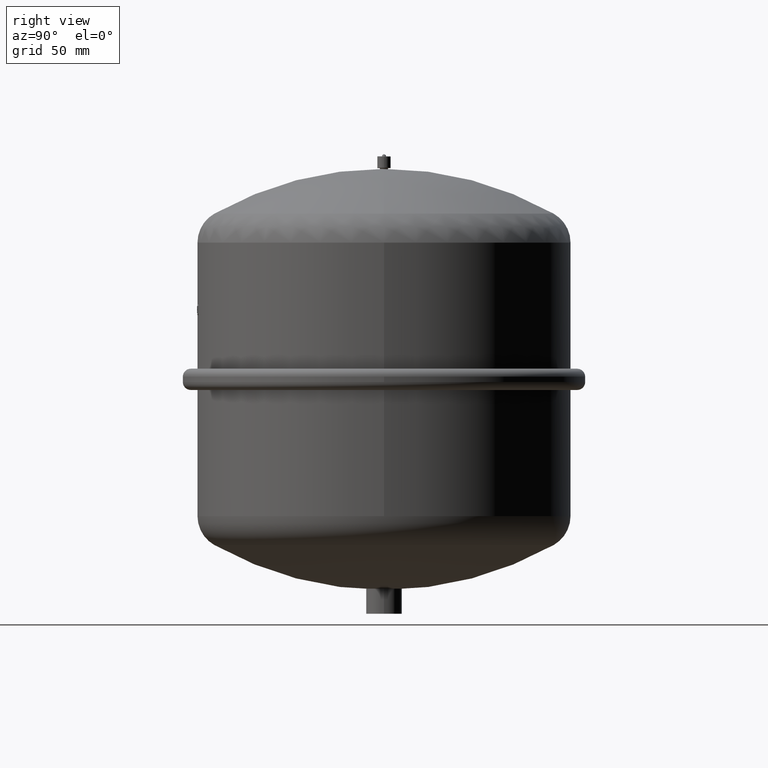
[diagram: clean part render]
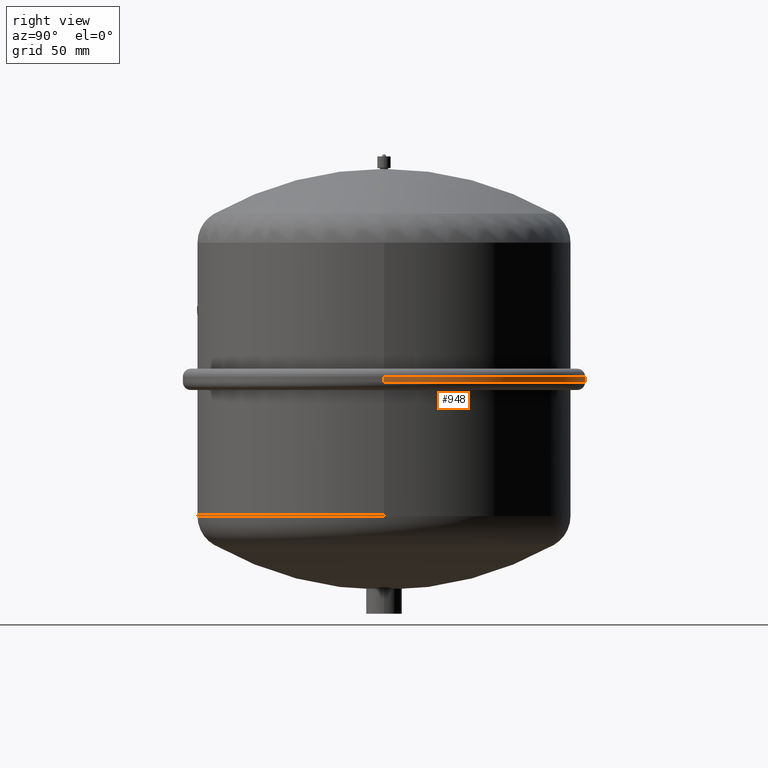
[diagram: same view with one face highlighted and labeled with its STEP entity id]
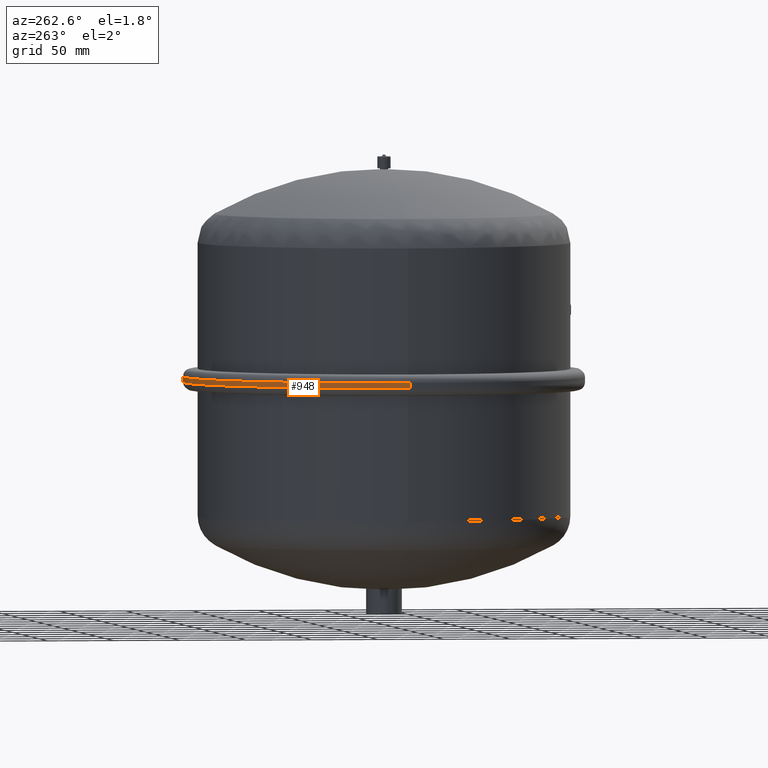
[diagram: same view with one face highlighted and labeled with its STEP entity id]
A machine part, right view. The second image highlights one B-rep face of the part: STEP entity #948.
A second angle (auxiliary view) of the same face is appended — the face is thin or edge-on in the first view.
In plain terms, the highlighted cylindrical surface (partial cylindrical patch) has radius 151 mm, axis along (-0, 0, 1).
Its self-contained STEP definition (entity closure, byte-faithful):
#871=CARTESIAN_POINT('',(-1.849156E-014,151.0,178.0));
#872=VERTEX_POINT('',#871);
#880=CARTESIAN_POINT('',(-151.0,4.440892E-016,178.0));
#881=VERTEX_POINT('',#880);
#882=CARTESIAN_POINT('',(-1.540744E-031,4.440892E-016,178.0));
#883=DIRECTION('',(0.0,0.0,1.0));
#884=DIRECTION('',(-1.0,0.0,0.0));
#885=AXIS2_PLACEMENT_3D('',#882,#883,#884);
#886=CIRCLE('',#885,151.0);
#887=EDGE_CURVE('',#872,#881,#886,.T.);
#899=CARTESIAN_POINT('',(-1.232595E-031,4.440892E-016,176.0));
#900=DIRECTION('',(-1.540744E-032,6.123032E-017,1.0));
#901=DIRECTION('',(-1.0,0.0,0.0));
#902=AXIS2_PLACEMENT_3D('',#899,#900,#901);
#903=CYLINDRICAL_SURFACE('',#902,151.0);
#904=CARTESIAN_POINT('',(-151.0,4.440892E-016,174.0));
#905=VERTEX_POINT('',#904);
#906=CARTESIAN_POINT('',(-151.0,5.665498E-016,178.0));
#907=DIRECTION('',(0.0,0.0,-1.0));
#908=VECTOR('',#907,4.0);
#909=LINE('',#906,#908);
#910=EDGE_CURVE('',#881,#905,#909,.T.);
#911=ORIENTED_EDGE('',*,*,#910,.F.);
#912=ORIENTED_EDGE('',*,*,#887,.F.);
#913=CARTESIAN_POINT('',(151.0,1.905811E-014,178.0));
#914=VERTEX_POINT('',#913);
#915=CARTESIAN_POINT('',(-1.540744E-031,4.440892E-016,178.0));
#916=DIRECTION('',(0.0,0.0,1.0));
#917=DIRECTION('',(-1.0,0.0,0.0));
#918=AXIS2_PLACEMENT_3D('',#915,#916,#917);
#919=CIRCLE('',#918,151.0);
#920=EDGE_CURVE('',#914,#872,#919,.T.);
#921=ORIENTED_EDGE('',*,*,#920,.F.);
#922=CARTESIAN_POINT('',(151.0,1.881318E-014,174.0));
#923=VERTEX_POINT('',#922);
#924=CARTESIAN_POINT('',(151.0,1.905811E-014,178.0));
#925=DIRECTION('',(0.0,0.0,-1.0));
#926=VECTOR('',#925,4.0);
#927=LINE('',#924,#926);
#928=EDGE_CURVE('',#914,#923,#927,.T.);
#929=ORIENTED_EDGE('',*,*,#928,.T.);
#930=CARTESIAN_POINT('',(-1.849156E-014,151.0,174.0));
#931=VERTEX_POINT('',#930);
#932=CARTESIAN_POINT('',(-9.244464E-032,4.440892E-016,174.0));
#933=DIRECTION('',(0.0,0.0,1.0));
#934=DIRECTION('',(-1.0,0.0,0.0));
#935=AXIS2_PLACEMENT_3D('',#932,#933,#934);
#936=CIRCLE('',#935,151.0);
#937=EDGE_CURVE('',#923,#931,#936,.T.);
#938=ORIENTED_EDGE('',*,*,#937,.T.);
#939=CARTESIAN_POINT('',(-9.244464E-032,4.440892E-016,174.0));
#940=DIRECTION('',(0.0,0.0,1.0));
#941=DIRECTION('',(-1.0,0.0,0.0));
#942=AXIS2_PLACEMENT_3D('',#939,#940,#941);
#943=CIRCLE('',#942,151.0);
#944=EDGE_CURVE('',#931,#905,#943,.T.);
#945=ORIENTED_EDGE('',*,*,#944,.T.);
#946=EDGE_LOOP('',(#911,#912,#921,#929,#938,#945));
#947=FACE_OUTER_BOUND('',#946,.T.);
#948=ADVANCED_FACE('',(#947),#903,.T.);